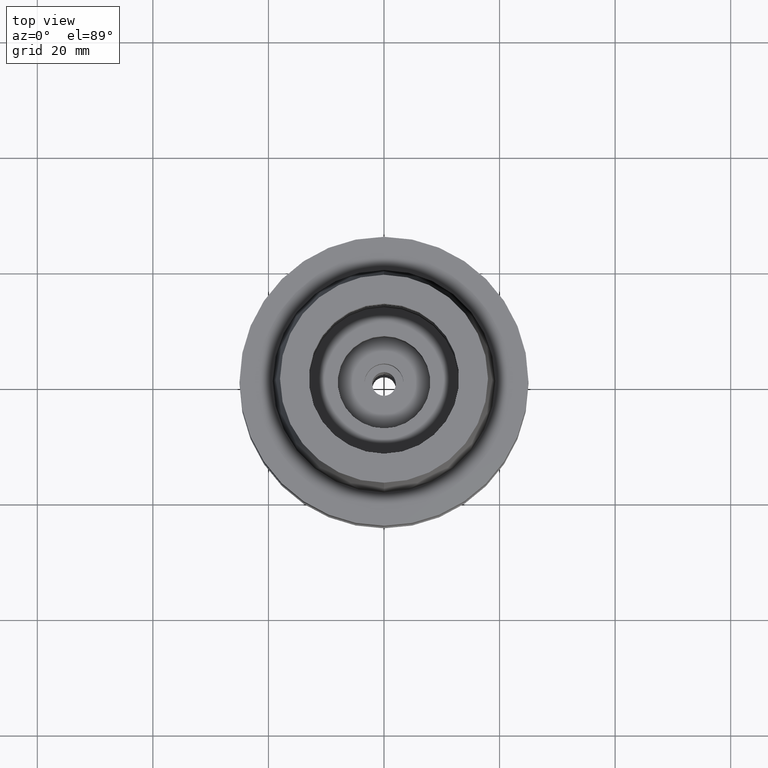
[diagram: clean part render]
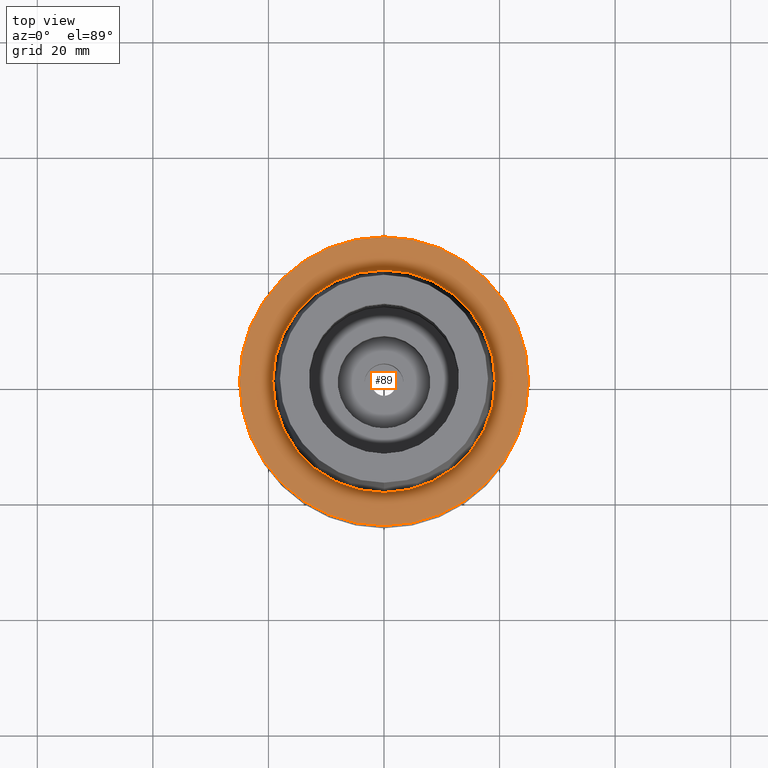
[diagram: same view with one face highlighted and labeled with its STEP entity id]
A machine part, top view. The second image highlights one B-rep face of the part: STEP entity #89.
In plain terms, the highlighted planar face has unit normal (0, 0, -1).
Its self-contained STEP definition (entity closure, byte-faithful):
#38 = PLANE ( 'NONE',  #103 ) ;
#66 = VERTEX_POINT ( 'NONE', #1291 ) ;
#70 = FACE_OUTER_BOUND ( 'NONE', #790, .T. ) ;
#89 = ADVANCED_FACE ( 'NONE', ( #70, #1533 ), #38, .F. ) ;
#103 = AXIS2_PLACEMENT_3D ( 'NONE', #1351, #669, #1121 ) ;
#108 = CIRCLE ( 'NONE', #1649, 25.00000000000000000 ) ;
#138 = CARTESIAN_POINT ( 'NONE',  ( 0.0000000000000000000, 0.0000000000000000000, -1.136868377215999950E-12 ) ) ;
#211 = CARTESIAN_POINT ( 'NONE',  ( 0.0000000000000000000, 0.0000000000000000000, -1.136868377215999950E-12 ) ) ;
#336 = ORIENTED_EDGE ( 'NONE', *, *, #1789, .F. ) ;
#362 = ORIENTED_EDGE ( 'NONE', *, *, #2398, .F. ) ;
#372 = DIRECTION ( 'NONE',  ( 0.0000000000000000000, 0.0000000000000000000, 1.000000000000000000 ) ) ;
#501 = CARTESIAN_POINT ( 'NONE',  ( 0.0000000000000000000, -25.00000000000000000, 3.907985046680999726E-14 ) ) ;
#562 = AXIS2_PLACEMENT_3D ( 'NONE', #138, #2188, #753 ) ;
#608 = CIRCLE ( 'NONE', #562, 19.24999954280000125 ) ;
#613 = VERTEX_POINT ( 'NONE', #2082 ) ;
#618 = CIRCLE ( 'NONE', #1515, 25.00000000000000000 ) ;
#669 = DIRECTION ( 'NONE',  ( 0.0000000000000000000, 0.0000000000000000000, -1.000000000000000000 ) ) ;
#701 = DIRECTION ( 'NONE',  ( 0.0000000000000000000, 0.0000000000000000000, -1.000000000000000000 ) ) ;
#740 = AXIS2_PLACEMENT_3D ( 'NONE', #211, #372, #1261 ) ;
#753 = DIRECTION ( 'NONE',  ( 0.0000000000000000000, 1.000000000000000000, 0.0000000000000000000 ) ) ;
#771 = EDGE_CURVE ( 'NONE', #1531, #1796, #108, .T. ) ;
#790 = EDGE_LOOP ( 'NONE', ( #336, #2696 ) ) ;
#1121 = DIRECTION ( 'NONE',  ( 0.0000000000000000000, -1.000000000000000000, 0.0000000000000000000 ) ) ;
#1169 = CARTESIAN_POINT ( 'NONE',  ( 0.0000000000000000000, 25.00000000000000000, 2.605323364453999397E-14 ) ) ;
#1261 = DIRECTION ( 'NONE',  ( 0.0000000000000000000, -1.000000000000000000, 0.0000000000000000000 ) ) ;
#1291 = CARTESIAN_POINT ( 'NONE',  ( 0.0000000000000000000, -19.24999954280000125, -1.136868377215999950E-12 ) ) ;
#1344 = ORIENTED_EDGE ( 'NONE', *, *, #2568, .F. ) ;
#1351 = CARTESIAN_POINT ( 'NONE',  ( 0.0000000000000000000, 0.0000000000000000000, 0.0000000000000000000 ) ) ;
#1515 = AXIS2_PLACEMENT_3D ( 'NONE', #1631, #2178, #2016 ) ;
#1531 = VERTEX_POINT ( 'NONE', #501 ) ;
#1533 = FACE_BOUND ( 'NONE', #1721, .T. ) ;
#1631 = CARTESIAN_POINT ( 'NONE',  ( 0.0000000000000000000, 0.0000000000000000000, 3.907985046680999726E-14 ) ) ;
#1649 = AXIS2_PLACEMENT_3D ( 'NONE', #1734, #701, #2369 ) ;
#1721 = EDGE_LOOP ( 'NONE', ( #362, #1344 ) ) ;
#1734 = CARTESIAN_POINT ( 'NONE',  ( 0.0000000000000000000, 0.0000000000000000000, 3.907985046680999726E-14 ) ) ;
#1789 = EDGE_CURVE ( 'NONE', #1796, #1531, #618, .T. ) ;
#1796 = VERTEX_POINT ( 'NONE', #1169 ) ;
#2016 = DIRECTION ( 'NONE',  ( 0.0000000000000000000, 1.000000000000000000, 0.0000000000000000000 ) ) ;
#2060 = CIRCLE ( 'NONE', #740, 19.24999954280000125 ) ;
#2082 = CARTESIAN_POINT ( 'NONE',  ( 0.0000000000000000000, 19.24999954280000125, -1.136868377215999950E-12 ) ) ;
#2178 = DIRECTION ( 'NONE',  ( 0.0000000000000000000, 0.0000000000000000000, -1.000000000000000000 ) ) ;
#2188 = DIRECTION ( 'NONE',  ( 0.0000000000000000000, 0.0000000000000000000, 1.000000000000000000 ) ) ;
#2369 = DIRECTION ( 'NONE',  ( 0.0000000000000000000, -1.000000000000000000, 0.0000000000000000000 ) ) ;
#2398 = EDGE_CURVE ( 'NONE', #613, #66, #608, .T. ) ;
#2568 = EDGE_CURVE ( 'NONE', #66, #613, #2060, .T. ) ;
#2696 = ORIENTED_EDGE ( 'NONE', *, *, #771, .F. ) ;